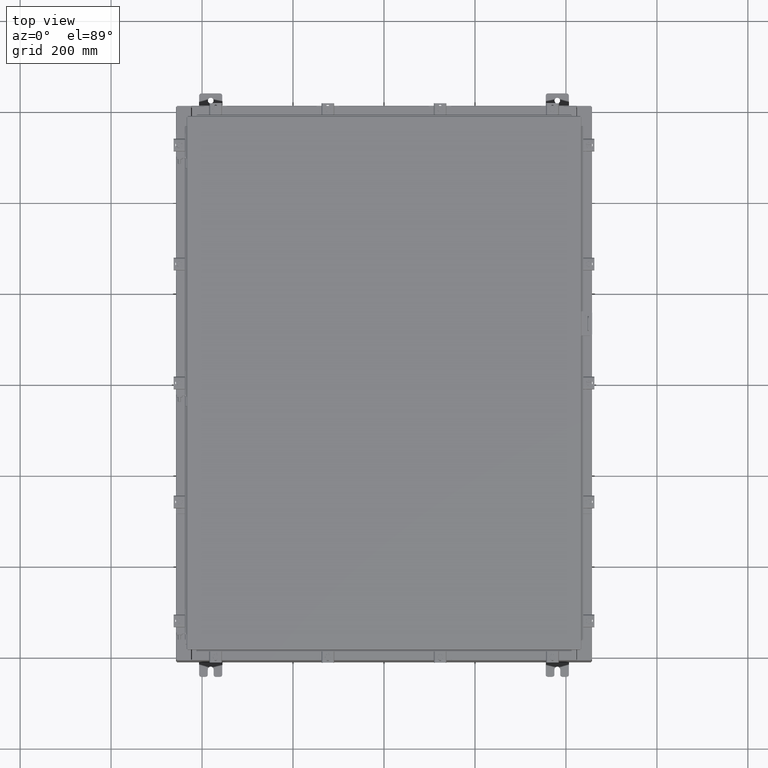
[diagram: clean part render]
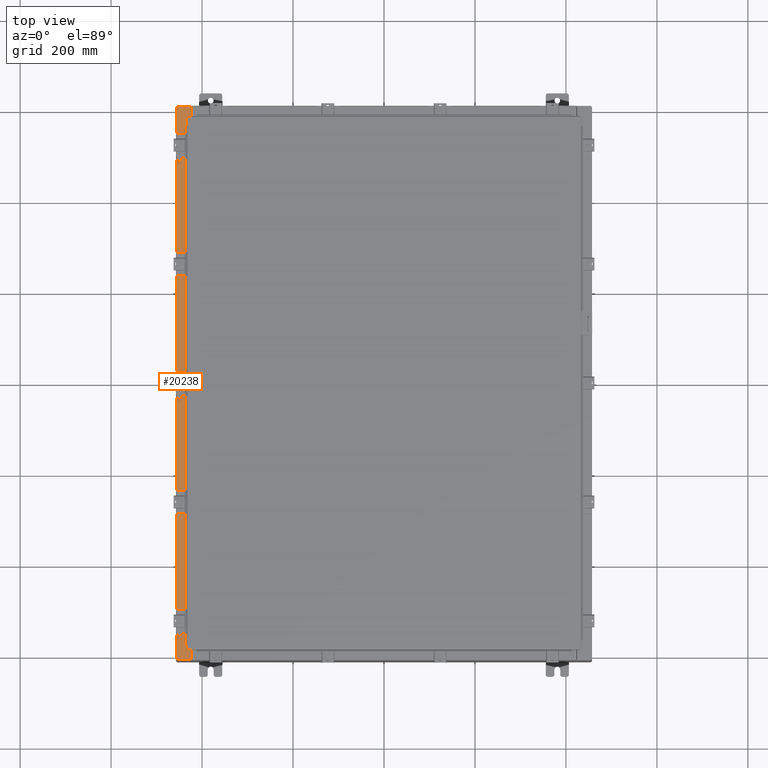
[diagram: same view with one face highlighted and labeled with its STEP entity id]
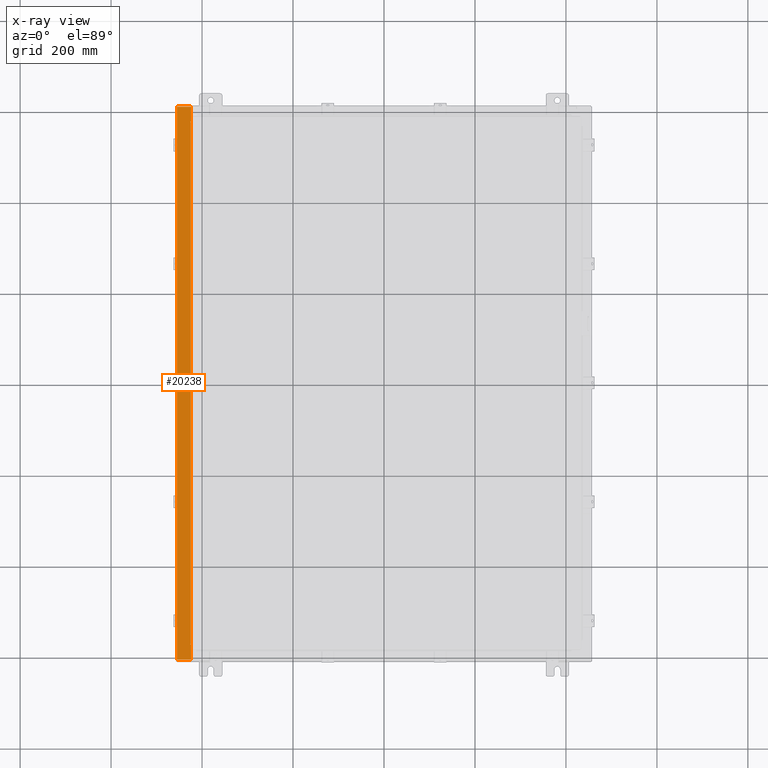
[diagram: x-ray of the same camera — body ghosted, the highlighted face saturated]
A machine part, top view. The second image highlights one B-rep face of the part: STEP entity #20238.
The next image is the same camera in x-ray: the body ghosted, the highlighted face saturated — about 0% of this face is hidden behind the body in this view.
In plain terms, the highlighted planar face has unit normal (0, 0, -1).
Its self-contained STEP definition (entity closure, byte-faithful):
#493 = VECTOR ( 'NONE', #26238, 39.37007874015748100 ) ;
#789 = VERTEX_POINT ( 'NONE', #27192 ) ;
#817 = VERTEX_POINT ( 'NONE', #6672 ) ;
#824 = LINE ( 'NONE', #6249, #22816 ) ;
#2171 = CARTESIAN_POINT ( 'NONE',  ( -16.75005000000004100, 22.63109999999999300, 9.925300000000007100 ) ) ;
#2841 = DIRECTION ( 'NONE',  ( -7.132762385546384700E-015, -0.0000000000000000000, 1.000000000000000000 ) ) ;
#3108 = EDGE_CURVE ( 'NONE', #6750, #15466, #16128, .T. ) ;
#3945 = CARTESIAN_POINT ( 'NONE',  ( -16.69970000000003900, -22.63109999999999600, 9.925300000000007100 ) ) ;
#4238 = FACE_OUTER_BOUND ( 'NONE', #22173, .T. ) ;
#4768 = VERTEX_POINT ( 'NONE', #16642 ) ;
#5365 = PLANE ( 'NONE',  #24160 ) ;
#5465 = LINE ( 'NONE', #17128, #11814 ) ;
#5475 = VERTEX_POINT ( 'NONE', #21266 ) ;
#5527 = ORIENTED_EDGE ( 'NONE', *, *, #10792, .F. ) ;
#5799 = CARTESIAN_POINT ( 'NONE',  ( -16.75005000000004100, 22.59374999999999300, 9.925300000000008900 ) ) ;
#5803 = VERTEX_POINT ( 'NONE', #13865 ) ;
#6180 = LINE ( 'NONE', #15831, #27493 ) ;
#6249 = CARTESIAN_POINT ( 'NONE',  ( -1.563823601127326600E-013, -23.92530000000005300, 9.925300000000126100 ) ) ;
#6672 = CARTESIAN_POINT ( 'NONE',  ( -17.91230000000004100, -23.92529999999998600, 9.925300000000000000 ) ) ;
#6750 = VERTEX_POINT ( 'NONE', #24462 ) ;
#6877 = DIRECTION ( 'NONE',  ( 1.000000000000000000, -8.681145560800197900E-014, -4.340572780400098900E-014 ) ) ;
#7061 = CARTESIAN_POINT ( 'NONE',  ( -16.71270000000004100, 22.59374999999999300, 9.925300000000008900 ) ) ;
#7141 = CARTESIAN_POINT ( 'NONE',  ( -16.71270000000004100, -22.59374999999998200, 9.925300000000008900 ) ) ;
#7288 = LINE ( 'NONE', #23937, #17942 ) ;
#7343 = EDGE_CURVE ( 'NONE', #26444, #17432, #6180, .T. ) ;
#7508 = DIRECTION ( 'NONE',  ( -1.000000000000000000, 0.0000000000000000000, -7.132762385546384700E-015 ) ) ;
#7716 = CARTESIAN_POINT ( 'NONE',  ( -16.75005000000004100, -22.61242499999998400, 9.925300000000008900 ) ) ;
#7927 = DIRECTION ( 'NONE',  ( 1.000000000000000000, 0.0000000000000000000, 0.0000000000000000000 ) ) ;
#8398 = LINE ( 'NONE', #24975, #24078 ) ;
#8756 = VERTEX_POINT ( 'NONE', #2171 ) ;
#9211 = EDGE_CURVE ( 'NONE', #4768, #8756, #8398, .T. ) ;
#9748 = ORIENTED_EDGE ( 'NONE', *, *, #23592, .T. ) ;
#9879 = DIRECTION ( 'NONE',  ( 1.000000000000000000, 0.0000000000000000000, 0.0000000000000000000 ) ) ;
#10429 = AXIS2_PLACEMENT_3D ( 'NONE', #15570, #2841, #17726 ) ;
#10792 = EDGE_CURVE ( 'NONE', #8756, #789, #19643, .T. ) ;
#10999 = DIRECTION ( 'NONE',  ( -1.000000000000000000, -8.144358738339254500E-032, -7.132762385546384700E-015 ) ) ;
#11099 = ORIENTED_EDGE ( 'NONE', *, *, #12449, .F. ) ;
#11652 = EDGE_CURVE ( 'NONE', #15466, #17432, #7288, .T. ) ;
#11707 = CARTESIAN_POINT ( 'NONE',  ( -7.105562016127600600E-014, 0.0000000000000000000, 9.925300000000126100 ) ) ;
#11727 = VECTOR ( 'NONE', #7927, 39.37007874015748100 ) ;
#11814 = VECTOR ( 'NONE', #10999, 39.37007874015748100 ) ;
#11823 = ORIENTED_EDGE ( 'NONE', *, *, #3108, .F. ) ;
#12092 = CARTESIAN_POINT ( 'NONE',  ( -17.91230000000004100, 23.92529999999998900, 9.925300000000000000 ) ) ;
#12449 = EDGE_CURVE ( 'NONE', #5475, #6750, #14950, .T. ) ;
#12668 = DIRECTION ( 'NONE',  ( 1.000000000000000000, -3.566381192773193100E-015, 7.132762385546384700E-015 ) ) ;
#13043 = LINE ( 'NONE', #5799, #11727 ) ;
#13591 = ORIENTED_EDGE ( 'NONE', *, *, #24984, .F. ) ;
#13644 = ORIENTED_EDGE ( 'NONE', *, *, #9211, .F. ) ;
#13865 = CARTESIAN_POINT ( 'NONE',  ( -16.71270000000004100, 22.59374999999999300, 9.925300000000008900 ) ) ;
#14230 = DIRECTION ( 'NONE',  ( -0.0000000000000000000, 1.000000000000000000, -0.0000000000000000000 ) ) ;
#14386 = EDGE_CURVE ( 'NONE', #817, #26795, #25810, .T. ) ;
#14950 = LINE ( 'NONE', #7141, #24954 ) ;
#15466 = VERTEX_POINT ( 'NONE', #15566 ) ;
#15566 = CARTESIAN_POINT ( 'NONE',  ( -16.75005000000004100, -22.63109999999998200, 9.925300000000007100 ) ) ;
#15570 = CARTESIAN_POINT ( 'NONE',  ( -16.75005000000004100, 22.61242499999999100, 9.925300000000008900 ) ) ;
#15592 = DIRECTION ( 'NONE',  ( -1.000000000000000000, 0.0000000000000000000, 0.0000000000000000000 ) ) ;
#15692 = ORIENTED_EDGE ( 'NONE', *, *, #23877, .T. ) ;
#15831 = CARTESIAN_POINT ( 'NONE',  ( -16.69970000000003900, -5.350181231484360800E-030, 9.925300000000007100 ) ) ;
#16128 = CIRCLE ( 'NONE', #25572, 0.01867499999999949400 ) ;
#16642 = CARTESIAN_POINT ( 'NONE',  ( -16.69970000000003900, 22.63109999999999600, 9.925300000000007100 ) ) ;
#17128 = CARTESIAN_POINT ( 'NONE',  ( -7.105562016127600600E-014, 23.92529999999998900, 9.925300000000126100 ) ) ;
#17145 = VERTEX_POINT ( 'NONE', #20266 ) ;
#17432 = VERTEX_POINT ( 'NONE', #3945 ) ;
#17444 = LINE ( 'NONE', #24117, #493 ) ;
#17726 = DIRECTION ( 'NONE',  ( 1.000000000000000000, 0.0000000000000000000, 0.0000000000000000000 ) ) ;
#17942 = VECTOR ( 'NONE', #6877, 39.37007874015748100 ) ;
#17975 = DIRECTION ( 'NONE',  ( -3.203758888773074600E-031, 1.000000000000000000, -2.285165089420047000E-045 ) ) ;
#18077 = DIRECTION ( 'NONE',  ( -1.000000000000000000, -8.681145560800197900E-014, 4.340572780400098900E-014 ) ) ;
#18389 = ORIENTED_EDGE ( 'NONE', *, *, #26627, .F. ) ;
#18458 = VECTOR ( 'NONE', #24217, 39.37007874015748100 ) ;
#19582 = ORIENTED_EDGE ( 'NONE', *, *, #7343, .T. ) ;
#19643 = CIRCLE ( 'NONE', #10429, 0.01867499999999949400 ) ;
#20238 = ADVANCED_FACE ( 'NONE', ( #4238 ), #5365, .F. ) ;
#20263 = DIRECTION ( 'NONE',  ( 7.132762385546384700E-015, 0.0000000000000000000, -1.000000000000000000 ) ) ;
#20266 = CARTESIAN_POINT ( 'NONE',  ( -16.69970000000003900, 23.92529999999998900, 9.925300000000007100 ) ) ;
#21266 = CARTESIAN_POINT ( 'NONE',  ( -16.71270000000004100, -22.59374999999998200, 9.925300000000008900 ) ) ;
#22173 = EDGE_LOOP ( 'NONE', ( #13644, #15692, #27310, #23775, #9748, #19582, #27108, #11823, #11099, #13591, #18389, #5527 ) ) ;
#22643 = DIRECTION ( 'NONE',  ( -7.132762385546384700E-015, -0.0000000000000000000, 1.000000000000000000 ) ) ;
#22816 = VECTOR ( 'NONE', #12668, 39.37007874015748100 ) ;
#23219 = CARTESIAN_POINT ( 'NONE',  ( -17.91230000000004100, 23.92529999999998900, 9.925300000000000000 ) ) ;
#23592 = EDGE_CURVE ( 'NONE', #817, #26444, #824, .T. ) ;
#23775 = ORIENTED_EDGE ( 'NONE', *, *, #14386, .F. ) ;
#23877 = EDGE_CURVE ( 'NONE', #4768, #17145, #17444, .T. ) ;
#23937 = CARTESIAN_POINT ( 'NONE',  ( -16.75005000000004100, -22.63109999999998200, 9.925300000000008900 ) ) ;
#24078 = VECTOR ( 'NONE', #18077, 39.37007874015748100 ) ;
#24117 = CARTESIAN_POINT ( 'NONE',  ( -16.69970000000003900, -5.350181231484360800E-030, 9.925300000000007100 ) ) ;
#24132 = LINE ( 'NONE', #7061, #18458 ) ;
#24160 = AXIS2_PLACEMENT_3D ( 'NONE', #11707, #20263, #7508 ) ;
#24217 = DIRECTION ( 'NONE',  ( -0.0000000000000000000, -1.000000000000000000, -0.0000000000000000000 ) ) ;
#24439 = CARTESIAN_POINT ( 'NONE',  ( -16.69970000000003900, -23.92529999999998600, 9.925300000000007100 ) ) ;
#24462 = CARTESIAN_POINT ( 'NONE',  ( -16.75005000000004100, -22.59374999999998200, 9.925300000000007100 ) ) ;
#24803 = EDGE_CURVE ( 'NONE', #17145, #26795, #5465, .T. ) ;
#24954 = VECTOR ( 'NONE', #15592, 39.37007874015748100 ) ;
#24975 = CARTESIAN_POINT ( 'NONE',  ( -16.69970000000003900, 22.63109999999999600, 9.925300000000007100 ) ) ;
#24984 = EDGE_CURVE ( 'NONE', #5803, #5475, #24132, .T. ) ;
#25142 = VECTOR ( 'NONE', #14230, 39.37007874015748100 ) ;
#25572 = AXIS2_PLACEMENT_3D ( 'NONE', #7716, #22643, #9879 ) ;
#25810 = LINE ( 'NONE', #12092, #25142 ) ;
#26238 = DIRECTION ( 'NONE',  ( -3.203758888773074600E-031, 1.000000000000000000, -2.285165089420047000E-045 ) ) ;
#26444 = VERTEX_POINT ( 'NONE', #24439 ) ;
#26627 = EDGE_CURVE ( 'NONE', #789, #5803, #13043, .T. ) ;
#26795 = VERTEX_POINT ( 'NONE', #23219 ) ;
#27108 = ORIENTED_EDGE ( 'NONE', *, *, #11652, .F. ) ;
#27192 = CARTESIAN_POINT ( 'NONE',  ( -16.75005000000004100, 22.59374999999999300, 9.925300000000007100 ) ) ;
#27310 = ORIENTED_EDGE ( 'NONE', *, *, #24803, .T. ) ;
#27493 = VECTOR ( 'NONE', #17975, 39.37007874015748100 ) ;